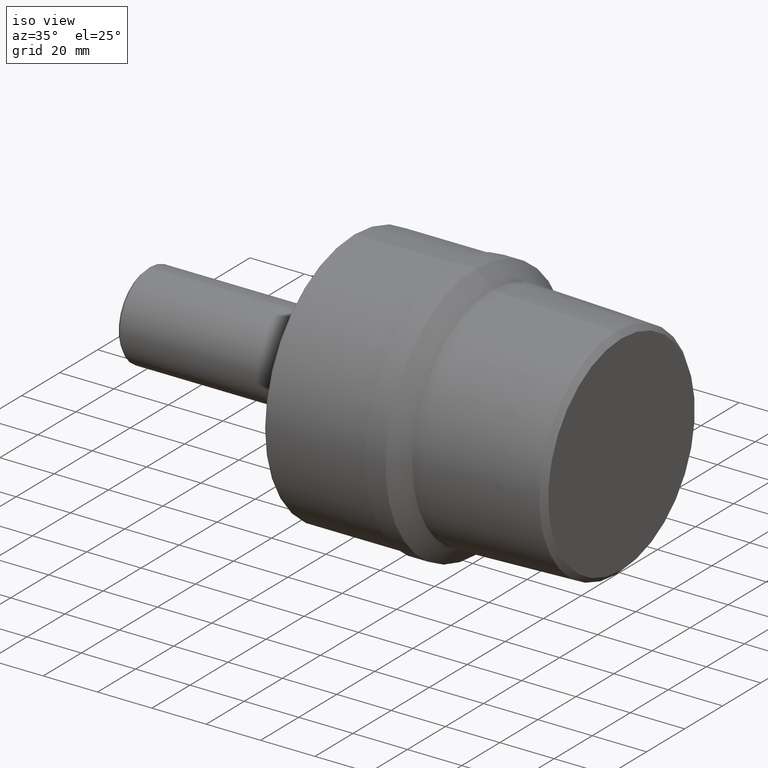
[diagram: clean part render]
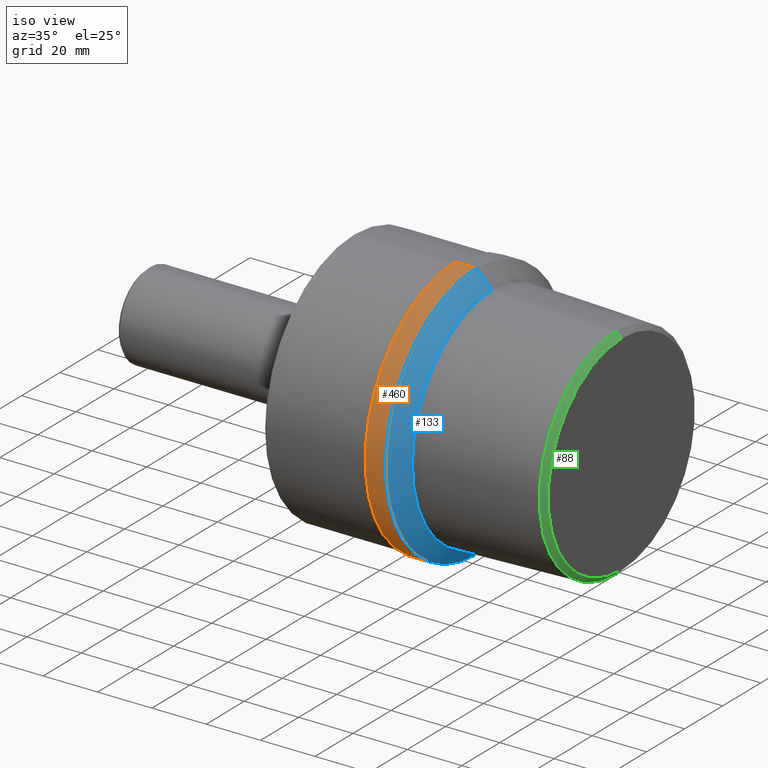
[diagram: same view with three faces highlighted in distinct colors, each labeled with its STEP entity id]
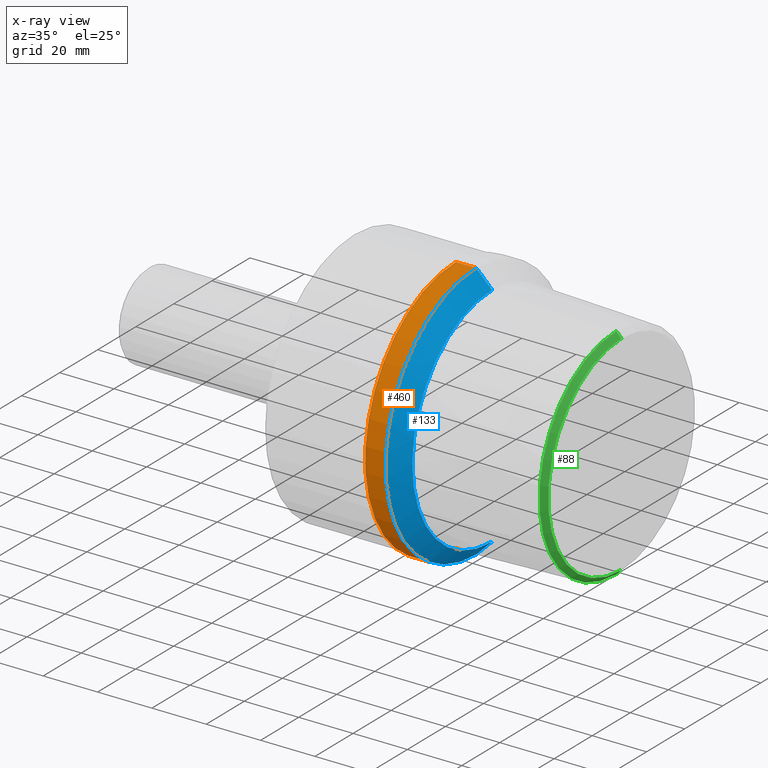
[diagram: x-ray of the same camera — body ghosted, the three highlighted faces saturated]
A machine part, iso view with three faces highlighted in distinct colors.
The next image is the same camera in x-ray (body ghosted, the three faces saturated) — at least one of them is partly hidden behind the body in this view.
Their STEP definitions:

[orange] entity #460 — the highlighted cylindrical surface (partial cylindrical patch) has radius 47.625 mm, axis along (-1, -0, -0).
#9 = LINE ( 'NONE', #271, #125 ) ;
#10 = EDGE_CURVE ( 'NONE', #487, #107, #369, .T. ) ;
#45 = CARTESIAN_POINT ( 'NONE',  ( 4.778000000000000469, 0.0000000000000000000, 1.875000000000000000 ) ) ;
#47 = VERTEX_POINT ( 'NONE', #604 ) ;
#51 = DIRECTION ( 'NONE',  ( -1.000000000000000000, -0.0000000000000000000, -0.0000000000000000000 ) ) ;
#58 = EDGE_CURVE ( 'NONE', #487, #104, #417, .T. ) ;
#104 = VERTEX_POINT ( 'NONE', #319 ) ;
#107 = VERTEX_POINT ( 'NONE', #45 ) ;
#125 = VECTOR ( 'NONE', #370, 39.37007874015748143 ) ;
#130 = FACE_OUTER_BOUND ( 'NONE', #348, .T. ) ;
#156 = CARTESIAN_POINT ( 'NONE',  ( 4.479999999999999538, 0.0000000000000000000, 0.0000000000000000000 ) ) ;
#180 = EDGE_CURVE ( 'NONE', #107, #47, #9, .T. ) ;
#216 = ORIENTED_EDGE ( 'NONE', *, *, #395, .F. ) ;
#217 = DIRECTION ( 'NONE',  ( 0.0000000000000000000, 0.0000000000000000000, 1.000000000000000000 ) ) ;
#271 = CARTESIAN_POINT ( 'NONE',  ( 0.0000000000000000000, 0.0000000000000000000, 1.875000000000000000 ) ) ;
#277 = AXIS2_PLACEMENT_3D ( 'NONE', #156, #586, #493 ) ;
#319 = CARTESIAN_POINT ( 'NONE',  ( 4.479999999999999538, 2.296212748401287479E-16, -1.875000000000000000 ) ) ;
#330 = DIRECTION ( 'NONE',  ( 0.0000000000000000000, 0.0000000000000000000, 1.000000000000000000 ) ) ;
#348 = EDGE_LOOP ( 'NONE', ( #441, #416, #359, #216 ) ) ;
#359 = ORIENTED_EDGE ( 'NONE', *, *, #180, .T. ) ;
#367 = VECTOR ( 'NONE', #51, 39.37007874015748143 ) ;
#369 = CIRCLE ( 'NONE', #562, 1.875000000000000000 ) ;
#370 = DIRECTION ( 'NONE',  ( -1.000000000000000000, -0.0000000000000000000, -0.0000000000000000000 ) ) ;
#383 = CIRCLE ( 'NONE', #277, 1.875000000000000000 ) ;
#390 = CARTESIAN_POINT ( 'NONE',  ( 4.778000000000000469, 0.0000000000000000000, 0.0000000000000000000 ) ) ;
#395 = EDGE_CURVE ( 'NONE', #104, #47, #383, .T. ) ;
#416 = ORIENTED_EDGE ( 'NONE', *, *, #10, .T. ) ;
#417 = LINE ( 'NONE', #464, #367 ) ;
#438 = DIRECTION ( 'NONE',  ( -1.000000000000000000, -0.0000000000000000000, -0.0000000000000000000 ) ) ;
#441 = ORIENTED_EDGE ( 'NONE', *, *, #58, .F. ) ;
#455 = AXIS2_PLACEMENT_3D ( 'NONE', #584, #438, #330 ) ;
#460 = ADVANCED_FACE ( 'NONE', ( #130 ), #600, .T. ) ;
#464 = CARTESIAN_POINT ( 'NONE',  ( 0.0000000000000000000, 2.296212748401287479E-16, -1.875000000000000000 ) ) ;
#475 = CARTESIAN_POINT ( 'NONE',  ( 4.778000000000000469, 2.296212748401287479E-16, -1.875000000000000000 ) ) ;
#487 = VERTEX_POINT ( 'NONE', #475 ) ;
#493 = DIRECTION ( 'NONE',  ( 0.0000000000000000000, 0.0000000000000000000, 1.000000000000000000 ) ) ;
#512 = DIRECTION ( 'NONE',  ( -1.000000000000000000, -0.0000000000000000000, -0.0000000000000000000 ) ) ;
#562 = AXIS2_PLACEMENT_3D ( 'NONE', #390, #512, #217 ) ;
#584 = CARTESIAN_POINT ( 'NONE',  ( 0.0000000000000000000, 0.0000000000000000000, 0.0000000000000000000 ) ) ;
#586 = DIRECTION ( 'NONE',  ( -1.000000000000000000, -0.0000000000000000000, -0.0000000000000000000 ) ) ;
#600 = CYLINDRICAL_SURFACE ( 'NONE', #455, 1.875000000000000000 ) ;
#604 = CARTESIAN_POINT ( 'NONE',  ( 4.479999999999999538, 0.0000000000000000000, 1.875000000000000000 ) ) ;

[blue] entity #133 — the highlighted conical surface has half-angle 45 deg.
#5 = LINE ( 'NONE', #283, #240 ) ;
#7 = CIRCLE ( 'NONE', #337, 1.647999999999999909 ) ;
#10 = EDGE_CURVE ( 'NONE', #487, #107, #369, .T. ) ;
#11 = FACE_OUTER_BOUND ( 'NONE', #471, .T. ) ;
#13 = ORIENTED_EDGE ( 'NONE', *, *, #66, .T. ) ;
#23 = DIRECTION ( 'NONE',  ( -1.000000000000000000, -0.0000000000000000000, -0.0000000000000000000 ) ) ;
#45 = CARTESIAN_POINT ( 'NONE',  ( 4.778000000000000469, 0.0000000000000000000, 1.875000000000000000 ) ) ;
#66 = EDGE_CURVE ( 'NONE', #177, #415, #7, .T. ) ;
#70 = DIRECTION ( 'NONE',  ( -0.7071067811865457964, 8.659560562354953812E-17, -0.7071067811865492381 ) ) ;
#74 = DIRECTION ( 'NONE',  ( -1.000000000000000000, -0.0000000000000000000, -0.0000000000000000000 ) ) ;
#77 = ORIENTED_EDGE ( 'NONE', *, *, #313, .F. ) ;
#80 = ORIENTED_EDGE ( 'NONE', *, *, #525, .T. ) ;
#107 = VERTEX_POINT ( 'NONE', #45 ) ;
#123 = CARTESIAN_POINT ( 'NONE',  ( 5.004999999999999893, 0.0000000000000000000, 0.0000000000000000000 ) ) ;
#133 = ADVANCED_FACE ( 'NONE', ( #11 ), #401, .T. ) ;
#177 = VERTEX_POINT ( 'NONE', #311 ) ;
#210 = AXIS2_PLACEMENT_3D ( 'NONE', #316, #74, #314 ) ;
#217 = DIRECTION ( 'NONE',  ( 0.0000000000000000000, 0.0000000000000000000, 1.000000000000000000 ) ) ;
#240 = VECTOR ( 'NONE', #70, 39.37007874015748143 ) ;
#283 = CARTESIAN_POINT ( 'NONE',  ( 5.004999999999999893, 2.018217924994838300E-16, -1.647999999999999909 ) ) ;
#294 = CARTESIAN_POINT ( 'NONE',  ( 5.004999999999999893, 0.0000000000000000000, 1.647999999999999909 ) ) ;
#311 = CARTESIAN_POINT ( 'NONE',  ( 5.004999999999999893, 2.157215336698062520E-16, -1.647999999999999909 ) ) ;
#313 = EDGE_CURVE ( 'NONE', #177, #487, #5, .T. ) ;
#314 = DIRECTION ( 'NONE',  ( 0.0000000000000000000, 0.0000000000000000000, 1.000000000000000000 ) ) ;
#316 = CARTESIAN_POINT ( 'NONE',  ( 5.004999999999999893, 0.0000000000000000000, 0.0000000000000000000 ) ) ;
#320 = VECTOR ( 'NONE', #544, 39.37007874015748143 ) ;
#337 = AXIS2_PLACEMENT_3D ( 'NONE', #123, #23, #554 ) ;
#369 = CIRCLE ( 'NONE', #562, 1.875000000000000000 ) ;
#390 = CARTESIAN_POINT ( 'NONE',  ( 4.778000000000000469, 0.0000000000000000000, 0.0000000000000000000 ) ) ;
#391 = CARTESIAN_POINT ( 'NONE',  ( 5.004999999999999893, 0.0000000000000000000, 1.647999999999999909 ) ) ;
#401 = CONICAL_SURFACE ( 'NONE', #210, 1.647999999999999909, 0.7853981633974507215 ) ;
#415 = VERTEX_POINT ( 'NONE', #391 ) ;
#469 = LINE ( 'NONE', #294, #320 ) ;
#471 = EDGE_LOOP ( 'NONE', ( #77, #13, #80, #572 ) ) ;
#475 = CARTESIAN_POINT ( 'NONE',  ( 4.778000000000000469, 2.296212748401287479E-16, -1.875000000000000000 ) ) ;
#487 = VERTEX_POINT ( 'NONE', #475 ) ;
#512 = DIRECTION ( 'NONE',  ( -1.000000000000000000, -0.0000000000000000000, -0.0000000000000000000 ) ) ;
#525 = EDGE_CURVE ( 'NONE', #415, #107, #469, .T. ) ;
#544 = DIRECTION ( 'NONE',  ( -0.7071067811865457964, 0.0000000000000000000, 0.7071067811865492381 ) ) ;
#554 = DIRECTION ( 'NONE',  ( 0.0000000000000000000, 0.0000000000000000000, 1.000000000000000000 ) ) ;
#562 = AXIS2_PLACEMENT_3D ( 'NONE', #390, #512, #217 ) ;
#572 = ORIENTED_EDGE ( 'NONE', *, *, #10, .F. ) ;

[green] entity #88 — the highlighted conical surface has half-angle 45 deg.
#21 = EDGE_CURVE ( 'NONE', #46, #307, #250, .T. ) ;
#43 = AXIS2_PLACEMENT_3D ( 'NONE', #351, #545, #221 ) ;
#46 = VERTEX_POINT ( 'NONE', #306 ) ;
#60 = AXIS2_PLACEMENT_3D ( 'NONE', #492, #114, #543 ) ;
#65 = CIRCLE ( 'NONE', #60, 1.592061653312734970 ) ;
#73 = FACE_OUTER_BOUND ( 'NONE', #263, .T. ) ;
#87 = ORIENTED_EDGE ( 'NONE', *, *, #225, .T. ) ;
#88 = ADVANCED_FACE ( 'NONE', ( #73 ), #115, .T. ) ;
#114 = DIRECTION ( 'NONE',  ( -1.000000000000000000, -0.0000000000000000000, -0.0000000000000000000 ) ) ;
#115 = CONICAL_SURFACE ( 'NONE', #389, 1.517061653312734126, 0.7853981633974556065 ) ;
#127 = CARTESIAN_POINT ( 'NONE',  ( 6.879999999999999893, 0.0000000000000000000, 0.0000000000000000000 ) ) ;
#149 = VERTEX_POINT ( 'NONE', #247 ) ;
#169 = DIRECTION ( 'NONE',  ( -0.7071067811865423547, 8.659560562354995721E-17, -0.7071067811865526798 ) ) ;
#173 = VERTEX_POINT ( 'NONE', #295 ) ;
#189 = DIRECTION ( 'NONE',  ( -1.000000000000000000, -0.0000000000000000000, -0.0000000000000000000 ) ) ;
#204 = LINE ( 'NONE', #350, #573 ) ;
#221 = DIRECTION ( 'NONE',  ( 0.0000000000000000000, 0.0000000000000000000, 1.000000000000000000 ) ) ;
#225 = EDGE_CURVE ( 'NONE', #46, #173, #381, .T. ) ;
#244 = ORIENTED_EDGE ( 'NONE', *, *, #21, .F. ) ;
#247 = CARTESIAN_POINT ( 'NONE',  ( 6.805000000000000604, 0.0000000000000000000, 1.592061653312734970 ) ) ;
#250 = LINE ( 'NONE', #456, #550 ) ;
#263 = EDGE_LOOP ( 'NONE', ( #244, #87, #575, #510 ) ) ;
#295 = CARTESIAN_POINT ( 'NONE',  ( 6.879999999999999893, 0.0000000000000000000, 1.517061653312734126 ) ) ;
#299 = DIRECTION ( 'NONE',  ( -0.7071067811865423547, 0.0000000000000000000, 0.7071067811865526798 ) ) ;
#306 = CARTESIAN_POINT ( 'NONE',  ( 6.879999999999999893, 1.903788952806657656E-16, -1.517061653312734126 ) ) ;
#307 = VERTEX_POINT ( 'NONE', #494 ) ;
#350 = CARTESIAN_POINT ( 'NONE',  ( 6.879999999999999893, 0.0000000000000000000, 1.517061653312734126 ) ) ;
#351 = CARTESIAN_POINT ( 'NONE',  ( 6.879999999999999893, 0.0000000000000000000, 0.0000000000000000000 ) ) ;
#363 = DIRECTION ( 'NONE',  ( 0.0000000000000000000, 0.0000000000000000000, 1.000000000000000000 ) ) ;
#377 = EDGE_CURVE ( 'NONE', #307, #149, #65, .T. ) ;
#381 = CIRCLE ( 'NONE', #43, 1.517061653312734126 ) ;
#389 = AXIS2_PLACEMENT_3D ( 'NONE', #127, #189, #363 ) ;
#456 = CARTESIAN_POINT ( 'NONE',  ( 6.879999999999999893, 1.857864697838631581E-16, -1.517061653312734126 ) ) ;
#492 = CARTESIAN_POINT ( 'NONE',  ( 6.805000000000000604, 0.0000000000000000000, 0.0000000000000000000 ) ) ;
#494 = CARTESIAN_POINT ( 'NONE',  ( 6.805000000000000604, 1.983965566384761139E-16, -1.592061653312734970 ) ) ;
#510 = ORIENTED_EDGE ( 'NONE', *, *, #377, .F. ) ;
#543 = DIRECTION ( 'NONE',  ( 0.0000000000000000000, 0.0000000000000000000, 1.000000000000000000 ) ) ;
#545 = DIRECTION ( 'NONE',  ( -1.000000000000000000, -0.0000000000000000000, -0.0000000000000000000 ) ) ;
#550 = VECTOR ( 'NONE', #169, 39.37007874015748143 ) ;
#556 = EDGE_CURVE ( 'NONE', #173, #149, #204, .T. ) ;
#573 = VECTOR ( 'NONE', #299, 39.37007874015748143 ) ;
#575 = ORIENTED_EDGE ( 'NONE', *, *, #556, .T. ) ;